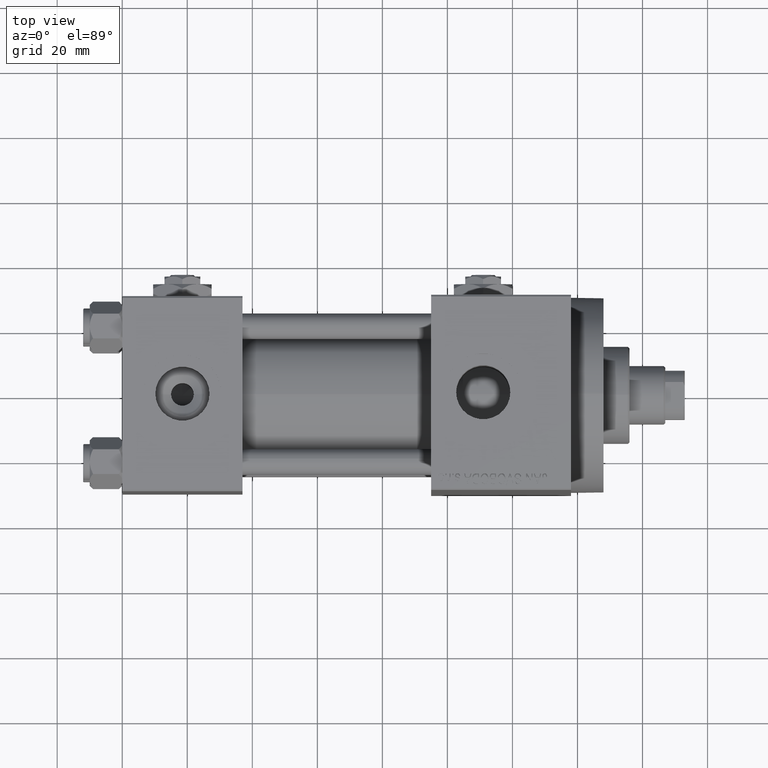
[diagram: clean part render]
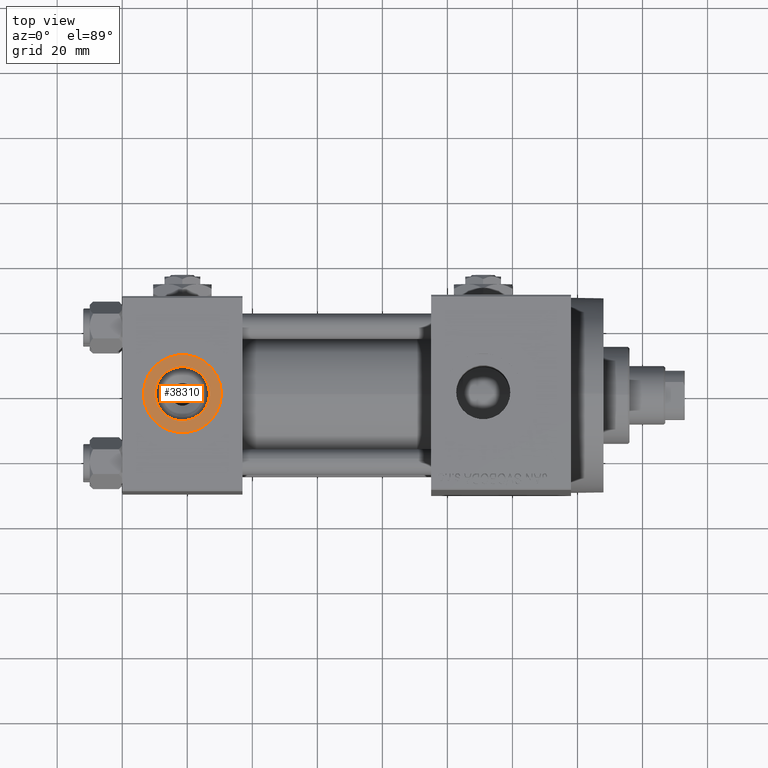
[diagram: same view with one face highlighted and labeled with its STEP entity id]
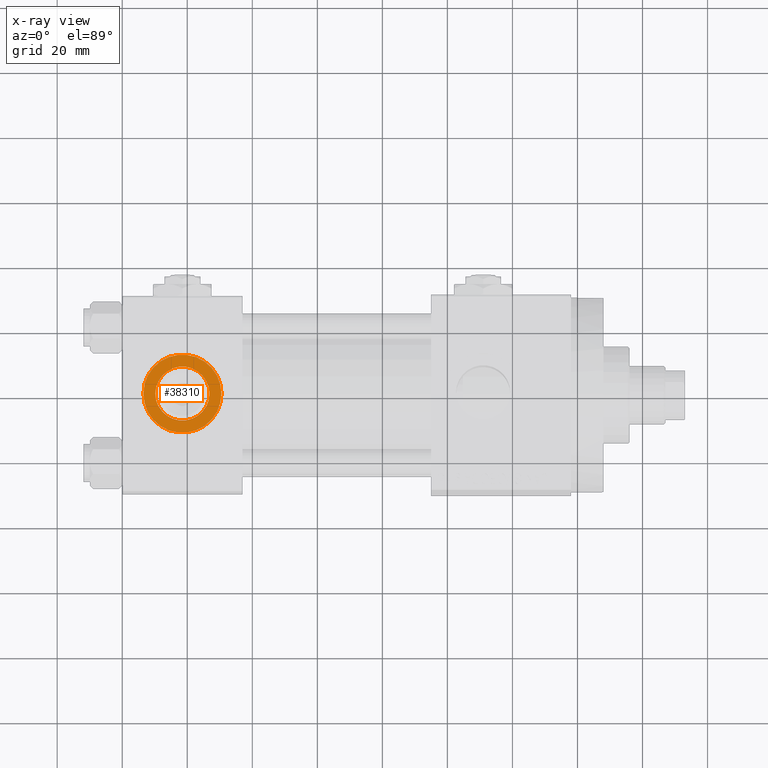
[diagram: x-ray of the same camera — body ghosted, the highlighted face saturated]
A machine part, top view. The second image highlights one B-rep face of the part: STEP entity #38310.
The next image is the same camera in x-ray: the body ghosted, the highlighted face saturated — about 0% of this face is hidden behind the body in this view.
In plain terms, the highlighted planar face has unit normal (0, 0, 1).
Its self-contained STEP definition (entity closure, byte-faithful):
#192 = CARTESIAN_POINT ( 'NONE',  ( 6.499999999999997335, -1.999870792976790833E-15, 29.79999999999999716 ) ) ;
#446 = CARTESIAN_POINT ( 'NONE',  ( 26.82999999999999829, -3.469446951953614978E-15, 29.79999999999999716 ) ) ;
#736 = CIRCLE ( 'NONE', #34978, 8.330000000000000071 ) ;
#1158 = DIRECTION ( 'NONE',  ( 0.000000000000000000, 0.000000000000000000, 1.000000000000000000 ) ) ;
#1344 = DIRECTION ( 'NONE',  ( 0.000000000000000000, 0.000000000000000000, 1.000000000000000000 ) ) ;
#3451 = CARTESIAN_POINT ( 'NONE',  ( 18.50000000000000000, -3.469446951953614978E-15, 29.79999999999999716 ) ) ;
#3532 = CARTESIAN_POINT ( 'NONE',  ( 10.16999999999999638, -2.449316168263869821E-15, 29.79999999999999716 ) ) ;
#4176 = PLANE ( 'NONE',  #9438 ) ;
#4416 = DIRECTION ( 'NONE',  ( 1.000000000000000000, 0.000000000000000000, 0.000000000000000000 ) ) ;
#4905 = CARTESIAN_POINT ( 'NONE',  ( 18.50000000000000000, -3.469446951953614978E-15, 29.79999999999999716 ) ) ;
#6655 = VERTEX_POINT ( 'NONE', #29354 ) ;
#7194 = DIRECTION ( 'NONE',  ( 1.000000000000000000, 0.000000000000000000, -0.000000000000000000 ) ) ;
#8029 = CIRCLE ( 'NONE', #25545, 8.330000000000000071 ) ;
#8172 = AXIS2_PLACEMENT_3D ( 'NONE', #31290, #12849, #35784 ) ;
#8413 = DIRECTION ( 'NONE',  ( 1.000000000000000000, 0.000000000000000000, 0.000000000000000000 ) ) ;
#9438 = AXIS2_PLACEMENT_3D ( 'NONE', #3451, #38324, #7194 ) ;
#10192 = EDGE_LOOP ( 'NONE', ( #31064, #45992 ) ) ;
#10628 = ORIENTED_EDGE ( 'NONE', *, *, #38414, .T. ) ;
#11183 = FACE_BOUND ( 'NONE', #10192, .T. ) ;
#12569 = AXIS2_PLACEMENT_3D ( 'NONE', #12646, #1158, #8413 ) ;
#12646 = CARTESIAN_POINT ( 'NONE',  ( 18.50000000000000000, -3.469446951953614978E-15, 29.79999999999999716 ) ) ;
#12849 = DIRECTION ( 'NONE',  ( 0.000000000000000000, 0.000000000000000000, 1.000000000000000000 ) ) ;
#13750 = ORIENTED_EDGE ( 'NONE', *, *, #22126, .T. ) ;
#20116 = CIRCLE ( 'NONE', #8172, 12.00000000000000000 ) ;
#22126 = EDGE_CURVE ( 'NONE', #6655, #31031, #20116, .T. ) ;
#24097 = DIRECTION ( 'NONE',  ( 0.000000000000000000, 0.000000000000000000, 1.000000000000000000 ) ) ;
#24539 = DIRECTION ( 'NONE',  ( 1.000000000000000000, 0.000000000000000000, 0.000000000000000000 ) ) ;
#25545 = AXIS2_PLACEMENT_3D ( 'NONE', #28533, #1344, #24539 ) ;
#27316 = EDGE_LOOP ( 'NONE', ( #13750, #10628 ) ) ;
#28533 = CARTESIAN_POINT ( 'NONE',  ( 18.50000000000000000, -3.469446951953614978E-15, 29.79999999999999716 ) ) ;
#29354 = CARTESIAN_POINT ( 'NONE',  ( 30.50000000000000000, -3.469446951953614978E-15, 29.79999999999999716 ) ) ;
#31031 = VERTEX_POINT ( 'NONE', #192 ) ;
#31064 = ORIENTED_EDGE ( 'NONE', *, *, #41845, .F. ) ;
#31290 = CARTESIAN_POINT ( 'NONE',  ( 18.50000000000000000, -3.469446951953614978E-15, 29.79999999999999716 ) ) ;
#34065 = CIRCLE ( 'NONE', #12569, 12.00000000000000000 ) ;
#34103 = FACE_OUTER_BOUND ( 'NONE', #27316, .T. ) ;
#34978 = AXIS2_PLACEMENT_3D ( 'NONE', #4905, #24097, #4416 ) ;
#35784 = DIRECTION ( 'NONE',  ( 1.000000000000000000, 0.000000000000000000, 0.000000000000000000 ) ) ;
#36170 = VERTEX_POINT ( 'NONE', #446 ) ;
#36658 = VERTEX_POINT ( 'NONE', #3532 ) ;
#38310 = ADVANCED_FACE ( 'NONE', ( #11183, #34103 ), #4176, .T. ) ;
#38324 = DIRECTION ( 'NONE',  ( 0.000000000000000000, 0.000000000000000000, 1.000000000000000000 ) ) ;
#38414 = EDGE_CURVE ( 'NONE', #31031, #6655, #34065, .T. ) ;
#41845 = EDGE_CURVE ( 'NONE', #36170, #36658, #736, .T. ) ;
#45856 = EDGE_CURVE ( 'NONE', #36658, #36170, #8029, .T. ) ;
#45992 = ORIENTED_EDGE ( 'NONE', *, *, #45856, .F. ) ;